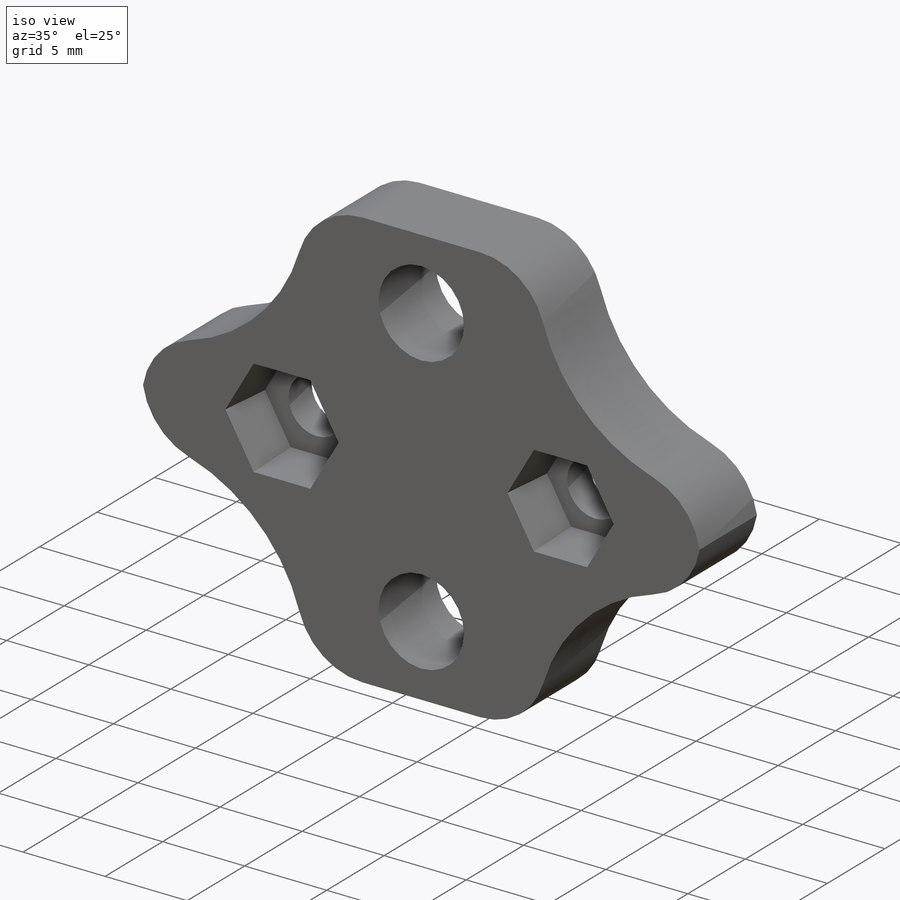
[diagram: iso view]
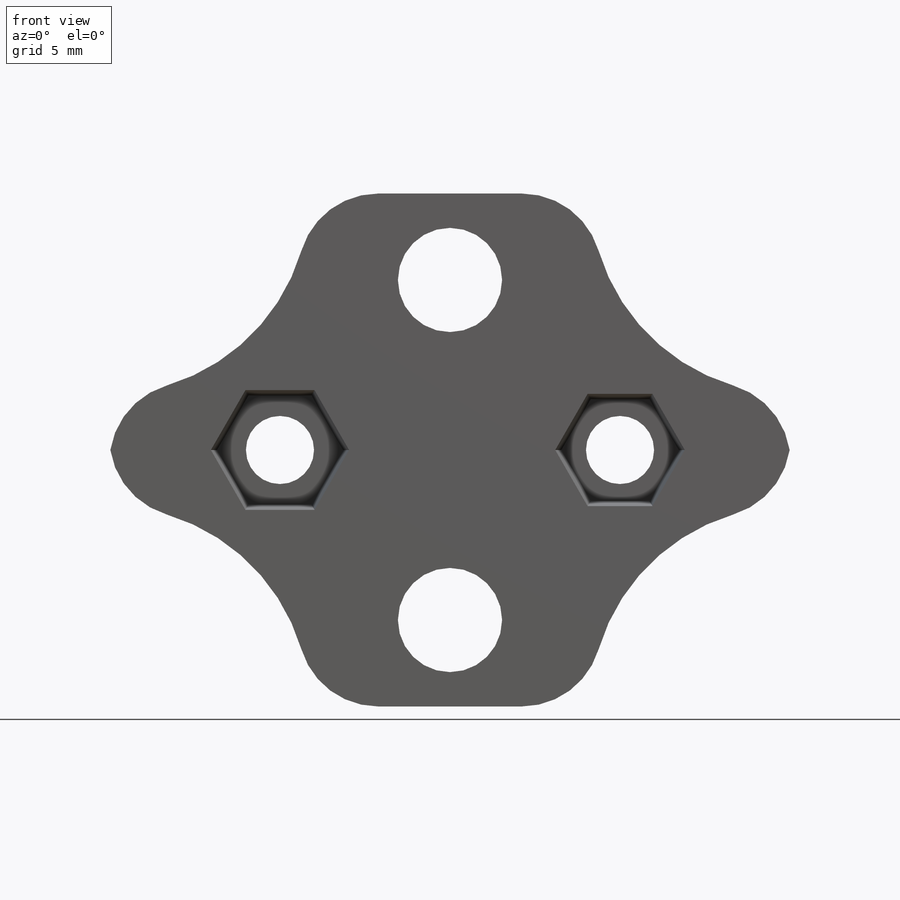
[diagram: front view]
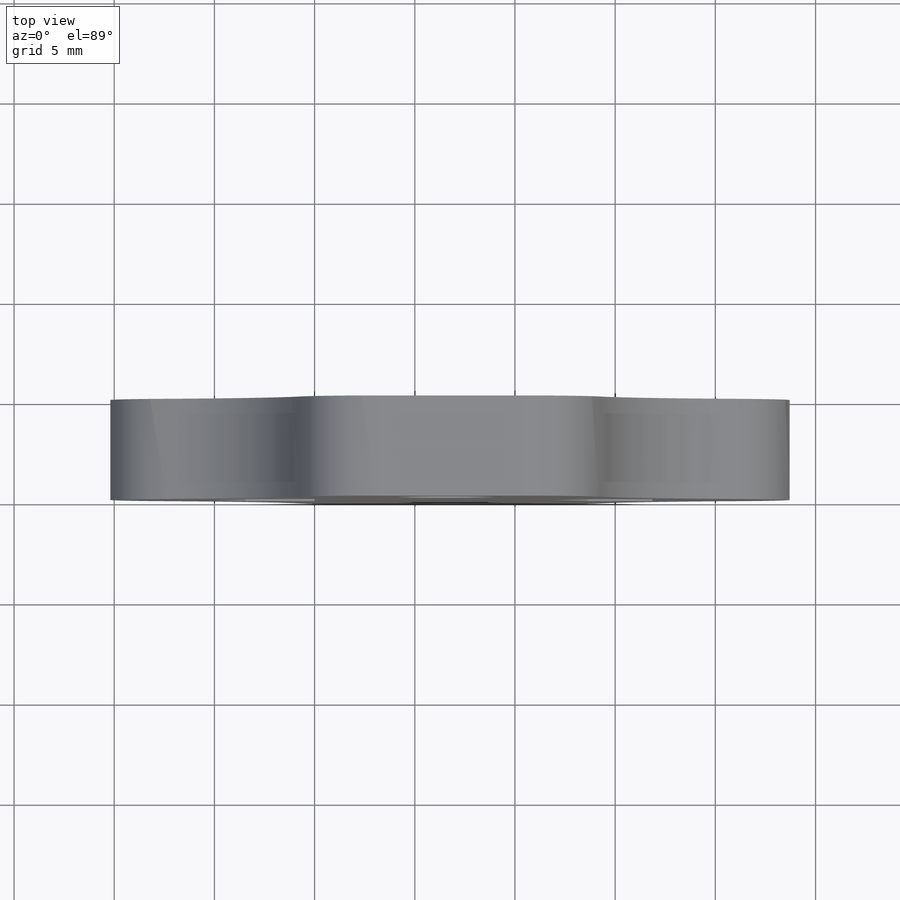
[diagram: top view]
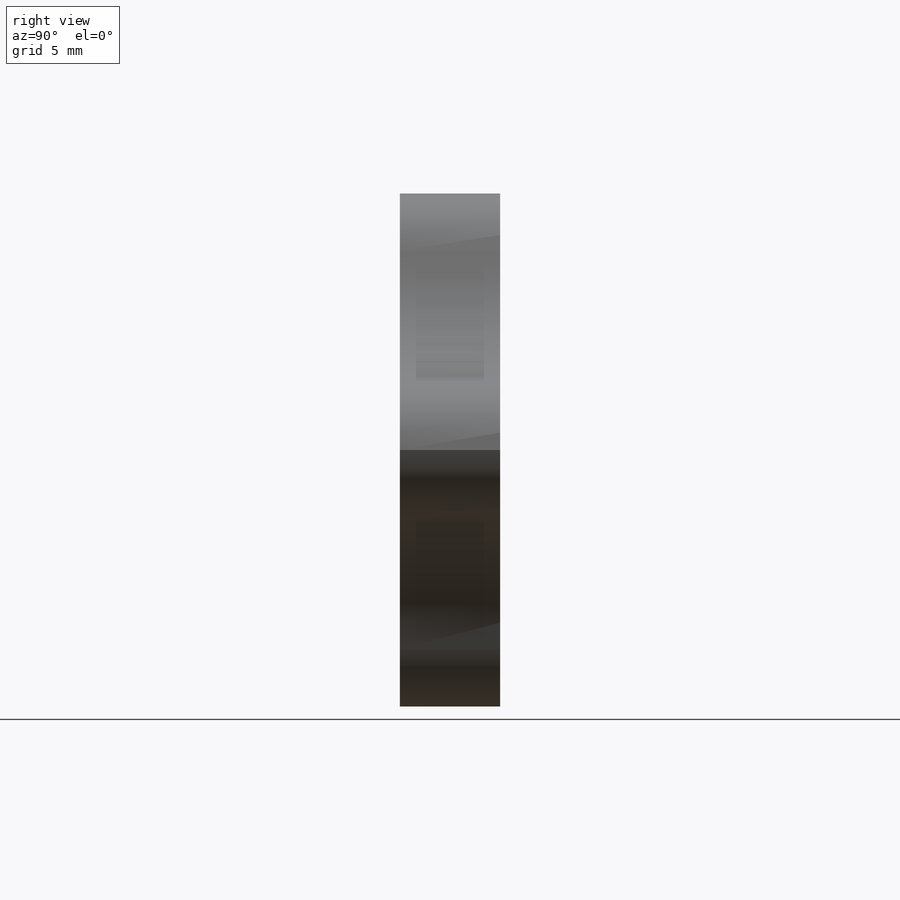
[diagram: right view]
SOLIDWORKS PART (.sldprt)
format: sldprt  version: not decoded by parser v0  size: 376,320 bytes
history: native  units: mm
features: plane x3, sketch x3, cut_extrude x2, material x1, extrude x1, fillet x1 (+10 scaffold rows collapsed)
feature tree (21):
  scaffold x10  (default folders/planes/origin — collapsed)
  material  "Matériau <non spécifié>"
  plane  "Plan de face"
  plane  "Plan de dessus"
  plane  "Plan de droite"
  sketch  "Esquisse1"  dims[c1.D1=~2.285004mm c1.D3=2.8mm c2.D1=30.0mm c2.D2=25.6mm c3.D1=12.0mm c4.D1=45.0deg c5.D1=34.0mm c5.D2=25.6mm]
  extrude  "Boss.-Extru.1"  Depth=5mm
  sketch  "Esquisse3"
  cut_extrude  "Enlèv. mat.-Extru.2"  Depth=3mm
  sketch  "Esquisse4"  dims[D1=~9.641905mm]
  cut_extrude  "Enlèv. mat.-Extru.3"  Depth=10mm
  fillet  "Congé1"  Radius=4mm
decode coverage: 6 of 7 modeling features carry decoded parameters
note: ~ marks probable driven/reference dimensions
note: suppression state not decoded; provenance and decode notes live in map.json
